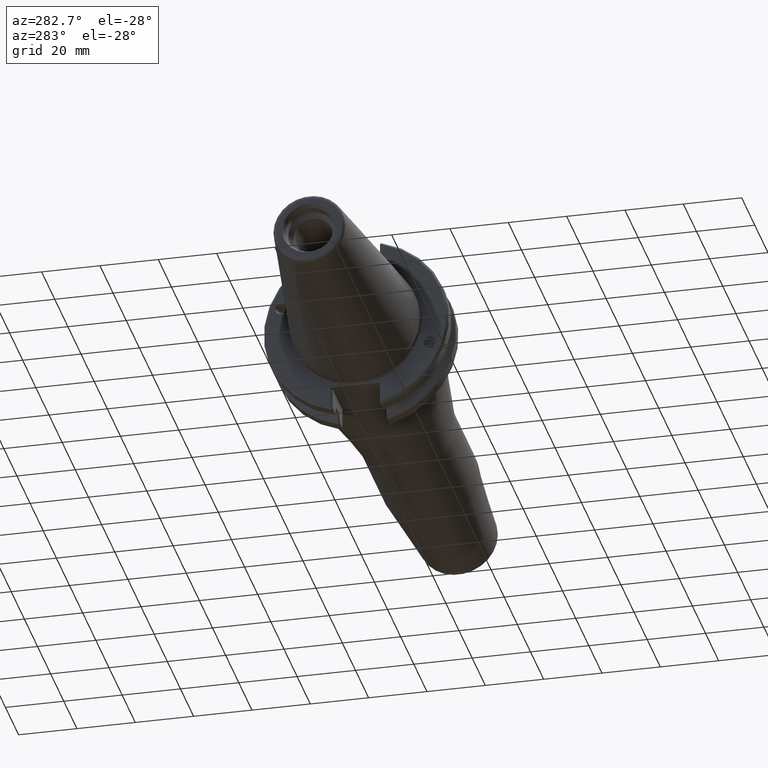
[diagram: clean part render]
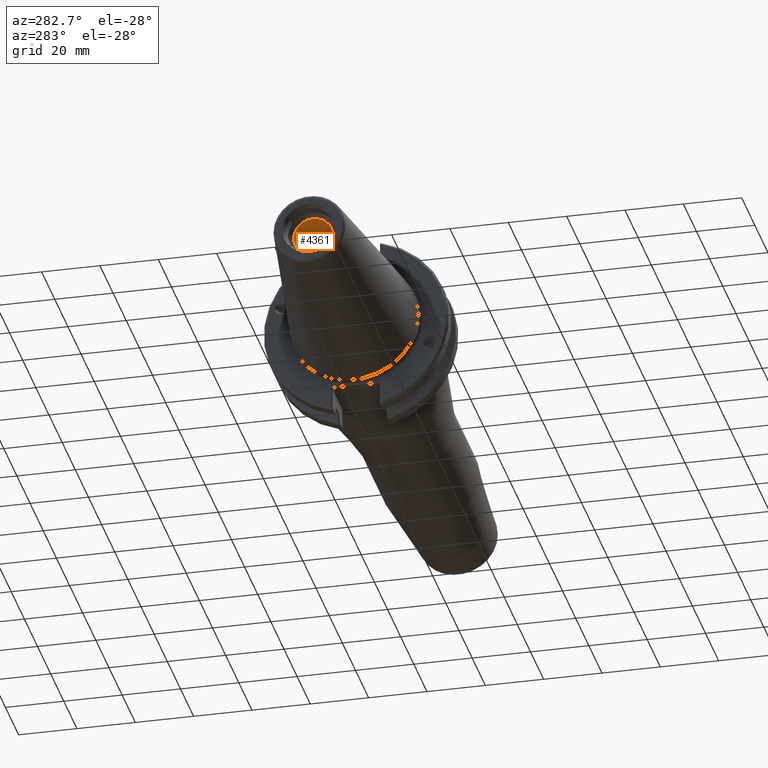
[diagram: same view with one face highlighted and labeled with its STEP entity id]
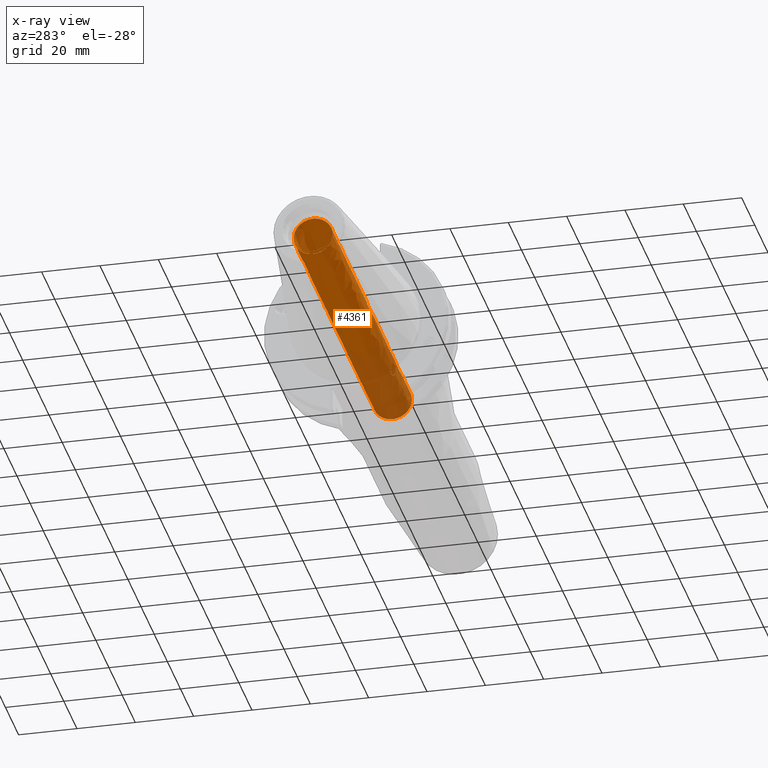
[diagram: x-ray of the same camera — body ghosted, the highlighted face saturated]
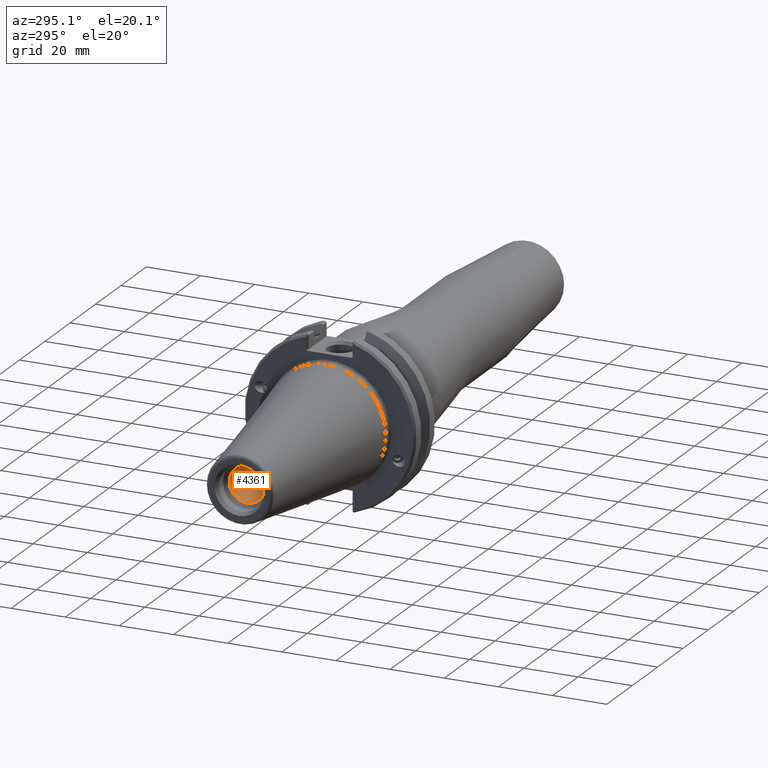
[diagram: same view with one face highlighted and labeled with its STEP entity id]
A machine part, auxiliary view. The second image highlights one B-rep face of the part: STEP entity #4361.
The next image is the same camera in x-ray: the body ghosted, the highlighted face saturated — about 38% of this face is hidden behind the body in this view.
A second angle (auxiliary view) of the same face is appended — the face is thin or edge-on in the first view.
In plain terms, the highlighted face is a freeform B-spline surface patch.
Its self-contained STEP definition (entity closure, byte-faithful):
#166=CARTESIAN_POINT('',(32.471849867467988,-5.530818386450406,-3.768946588385424));
#167=VERTEX_POINT('',#166);
#168=CARTESIAN_POINT('',(32.471849867467988,-5.530818386450406,-3.768946588385424));
#169=CARTESIAN_POINT('',(32.885832995321856,-5.530818386450406,-3.768946588385425));
#170=CARTESIAN_POINT('',(33.349794450932642,-5.563699459490528,-3.723069050991530));
#171=CARTESIAN_POINT('',(33.765260209274246,-5.641817186800560,-3.600667888145451));
#172=CARTESIAN_POINT('',(33.941010817865141,-5.674862601111665,-3.548889664716641));
#173=CARTESIAN_POINT('',(34.108167463368233,-5.715514736191706,-3.483715015754913));
#174=CARTESIAN_POINT('',(34.259895934768181,-5.762325198061008,-3.404485089083394));
#175=CARTESIAN_POINT('',(34.372620644468618,-5.797102426596129,-3.345622237561666));
#176=CARTESIAN_POINT('',(34.478535473700603,-5.835546683519175,-3.278669902818980));
#177=CARTESIAN_POINT('',(34.578285350669425,-5.879268063686205,-3.198299148816361));
#178=CARTESIAN_POINT('',(34.775830408625716,-5.965854060997505,-3.039132584005455));
#179=CARTESIAN_POINT('',(34.933945960698473,-6.069945902072263,-2.830942971501830));
#180=CARTESIAN_POINT('',(35.006348745703903,-6.167839163855303,-2.598590090570792));
#181=CARTESIAN_POINT('',(35.078875483661022,-6.265900018069321,-2.365839423485213));
#182=CARTESIAN_POINT('',(35.066487229991672,-6.355533829520550,-2.112612971455235));
#183=CARTESIAN_POINT('',(34.971940582330014,-6.424761157588208,-1.875461137412833));
#184=CARTESIAN_POINT('',(34.881711825174044,-6.490826913775842,-1.649139889942711));
#185=CARTESIAN_POINT('',(34.716568675383634,-6.537805185083738,-1.441882609289619));
#186=CARTESIAN_POINT('',(34.522093206011220,-6.569251061300786,-1.280566633798685));
#187=CARTESIAN_POINT('',(34.378983955963804,-6.592391233051126,-1.161858560499393));
#188=CARTESIAN_POINT('',(34.225876610854328,-6.607651268922304,-1.067955582561802));
#189=CARTESIAN_POINT('',(34.056426970260304,-6.619700633342899,-0.987154463556555));
#190=CARTESIAN_POINT('',(33.706523199795363,-6.644581878459102,-0.820304796017517));
#191=CARTESIAN_POINT('',(33.298835582379049,-6.653635743489503,-0.724865149534202));
#192=CARTESIAN_POINT('',(32.904065149509435,-6.657463987616041,-0.687810776010023));
#193=CARTESIAN_POINT('',(32.744037989541859,-6.659015833915115,-0.672790131945196));
#194=CARTESIAN_POINT('',(32.587903260191297,-6.659584904240082,-0.666963723988319));
#195=CARTESIAN_POINT('',(32.435421772960375,-6.659471269705223,-0.668096413678969));
#196=CARTESIAN_POINT('',(31.815269075501835,-6.659009110235267,-0.672703140566254));
#197=CARTESIAN_POINT('',(31.118742651155610,-6.649765889768571,-0.799926204905649));
#198=CARTESIAN_POINT('',(30.522612955464282,-6.609948705314421,-1.050470619823424));
#199=CARTESIAN_POINT('',(30.344776097753712,-6.598070479791708,-1.125212797218628));
#200=CARTESIAN_POINT('',(30.175719026926181,-6.583225812787457,-1.210742733386982));
#201=CARTESIAN_POINT('',(30.020602799000113,-6.563829076958289,-1.308074255719795));
#202=CARTESIAN_POINT('',(29.907977713975082,-6.549745708305144,-1.378743657141634));
#203=CARTESIAN_POINT('',(29.794441022645213,-6.532178397928388,-1.461053133721040));
#204=CARTESIAN_POINT('',(29.692080750423234,-6.510005123065121,-1.553944563897271));
#205=CARTESIAN_POINT('',(29.535724220285879,-6.476135182665942,-1.695837325479172));
#206=CARTESIAN_POINT('',(29.406296076888992,-6.431382104000777,-1.862422566107056));
#207=CARTESIAN_POINT('',(29.342949094993031,-6.373127789762174,-2.044052980076864));
#208=CARTESIAN_POINT('',(29.303358390235026,-6.336719909120150,-2.157568665896954));
#209=CARTESIAN_POINT('',(29.290371482579658,-6.293862760369271,-2.279836788467399));
#210=CARTESIAN_POINT('',(29.308405620214263,-6.249361284420980,-2.395911923836136));
#211=CARTESIAN_POINT('',(29.350866472148049,-6.144583855116587,-2.669207450128950));
#212=CARTESIAN_POINT('',(29.556236317116131,-6.033884767650283,-2.902759148005736));
#213=CARTESIAN_POINT('',(29.800402844212549,-5.943225552437839,-3.077820729485385));
#214=CARTESIAN_POINT('',(29.976556944103237,-5.877819402616827,-3.204119021383566));
#215=CARTESIAN_POINT('',(30.162125784155119,-5.824230014749467,-3.298892687795037));
#216=CARTESIAN_POINT('',(30.364721347108727,-5.775129334428289,-3.382719553942636));
#217=CARTESIAN_POINT('',(30.956226746299578,-5.631773196265624,-3.627463531553380));
#218=CARTESIAN_POINT('',(31.669737592894890,-5.543761333019547,-3.749938761854260));
#219=CARTESIAN_POINT('',(32.315082730361652,-5.532226667824761,-3.766879146695384));
#220=CARTESIAN_POINT('',(32.367833461866603,-5.531283820360104,-3.768263859526494));
#221=CARTESIAN_POINT('',(32.420123826501374,-5.530818386450406,-3.768946588385425));
#222=CARTESIAN_POINT('',(32.471849867467988,-5.530818386450406,-3.768946588385425));
#223=B_SPLINE_CURVE_WITH_KNOTS('',3,(#168,#169,#170,#171,#172,#173,#174,#175,#176,#177,#178,#179,#180,#181,#182,#183,#184,#185,#186,#187,#188,#189,#190,#191,#192,#193,#194,#195,#196,#197,#198,#199,#200,#201,#202,#203,#204,#205,#206,#207,#208,#209,#210,#211,#212,#213,#214,#215,#216,#217,#218,#219,#220,#221,#222),.UNSPECIFIED.,.T.,.U.,(4,3,3,3,3,3,3,3,3,3,3,3,3,3,3,3,3,3,4),(0.0,0.124194938356159,0.176731965925244,0.215763672543036,0.293062221476131,0.370493104867091,0.444387764769332,0.498764850965573,0.611050409201411,0.656567341306075,0.841687835192626,0.896912809168187,0.937009950986690,0.998258810794042,1.036538227631610,1.126665999936777,1.191688739926442,1.381531504562295,1.397049316852278),.UNSPECIFIED.);
#224=EDGE_CURVE('',#167,#167,#223,.T.);
#237=CARTESIAN_POINT('',(32.471849867467988,6.659484859425110,0.667960939791934));
#238=VERTEX_POINT('',#237);
#239=CARTESIAN_POINT('',(32.471849867467995,6.659484859425110,0.667960939791936));
#240=CARTESIAN_POINT('',(31.889745985446215,6.659484859425110,0.667960939791934));
#241=CARTESIAN_POINT('',(31.236476675917565,6.651380246520129,0.776519641240546));
#242=CARTESIAN_POINT('',(30.660715951205258,6.618486090364834,0.995264930381466));
#243=CARTESIAN_POINT('',(30.468175167275287,6.607485919041894,1.068415785666404));
#244=CARTESIAN_POINT('',(30.284170979698853,6.593489324946357,1.153585265973652));
#245=CARTESIAN_POINT('',(30.114481584108464,6.574836053648059,1.251575518156865));
#246=CARTESIAN_POINT('',(30.007098703054375,6.563031886356840,1.313585731335125));
#247=CARTESIAN_POINT('',(29.903883051503289,6.549315616625512,1.381258665428042));
#248=CARTESIAN_POINT('',(29.803637441006952,6.531729007651166,1.459940608589377));
#249=CARTESIAN_POINT('',(29.612559277171538,6.498207171290739,1.609916264898232));
#250=CARTESIAN_POINT('',(29.444009683182625,6.451422703363041,1.794634778079475));
#251=CARTESIAN_POINT('',(29.359383384229538,6.386850352282447,2.000763101306494));
#252=CARTESIAN_POINT('',(29.313256982107816,6.351654553000953,2.113115384739293));
#253=CARTESIAN_POINT('',(29.292244727964089,6.310304794484268,2.234025184522895));
#254=CARTESIAN_POINT('',(29.303007405990254,6.265984421071275,2.352094735526629));
#255=CARTESIAN_POINT('',(29.322361457356077,6.186285039420879,2.564414025327082));
#256=CARTESIAN_POINT('',(29.439729413324724,6.102079298577711,2.755078342621916));
#257=CARTESIAN_POINT('',(29.602301537545589,6.025539235374212,2.913380739444463));
#258=CARTESIAN_POINT('',(29.710599363676327,5.974551881320900,3.018834276016800));
#259=CARTESIAN_POINT('',(29.838630059343352,5.926972458970581,3.110218687793240));
#260=CARTESIAN_POINT('',(29.967734731757847,5.885595229105317,3.186640740518568));
#261=CARTESIAN_POINT('',(30.091123524171724,5.846049902580535,3.259679342632780));
#262=CARTESIAN_POINT('',(30.219277891908384,5.810573831623023,3.322122261287633));
#263=CARTESIAN_POINT('',(30.355958707150251,5.777259083634691,3.379080923943737));
#264=CARTESIAN_POINT('',(30.689920415270091,5.695858851099664,3.518251971754604));
#265=CARTESIAN_POINT('',(31.063103903139194,5.631348380870396,3.617831525120025));
#266=CARTESIAN_POINT('',(31.441332076458085,5.589168105985743,3.681862340315258));
#267=CARTESIAN_POINT('',(31.737741806067724,5.556112282132878,3.732041988362528));
#268=CARTESIAN_POINT('',(32.037299990804712,5.536935535383539,3.759964033012577));
#269=CARTESIAN_POINT('',(32.323169312329945,5.532085804776704,3.767086016882026));
#270=CARTESIAN_POINT('',(32.469549227922101,5.529602491236498,3.770732841914164));
#271=CARTESIAN_POINT('',(32.612453113582092,5.530595344869046,3.769285331673254));
#272=CARTESIAN_POINT('',(32.762310769074972,5.535818587461465,3.761598460324567));
#273=CARTESIAN_POINT('',(33.188637994147804,5.550678092055904,3.739730224625836));
#274=CARTESIAN_POINT('',(33.640986960948062,5.603741374614472,3.664061497778692));
#275=CARTESIAN_POINT('',(34.026557795525953,5.698097235333419,3.510925562680823));
#276=CARTESIAN_POINT('',(34.167231344310494,5.732522488971924,3.455054699262848));
#277=CARTESIAN_POINT('',(34.296963024270127,5.771221322625713,3.390569936270009));
#278=CARTESIAN_POINT('',(34.418880124897434,5.815627578610878,3.312610190906951));
#279=CARTESIAN_POINT('',(34.621300803326100,5.889355910540880,3.183172528222074));
#280=CARTESIAN_POINT('',(34.806296123632109,5.983424780235072,3.007633064264858));
#281=CARTESIAN_POINT('',(34.920403435550021,6.079111499791709,2.799877458586395));
#282=CARTESIAN_POINT('',(35.033577535363769,6.174015657710557,2.593820955644369));
#283=CARTESIAN_POINT('',(35.076780985435775,6.268163566884591,2.359046480971180));
#284=CARTESIAN_POINT('',(35.040993059131253,6.346037802022776,2.126667492885980));
#285=CARTESIAN_POINT('',(35.005159350613020,6.424011658883805,1.893991230675331));
#286=CARTESIAN_POINT('',(34.888836344736596,6.485530586516804,1.664641886150749));
#287=CARTESIAN_POINT('',(34.721666243882794,6.528588884018360,1.473919127181647));
#288=CARTESIAN_POINT('',(34.617046887772602,6.555535875955354,1.354559910808640));
#289=CARTESIAN_POINT('',(34.493502336581045,6.575704906033196,1.250069899021885));
#290=CARTESIAN_POINT('',(34.366486344889431,6.590924113214697,1.163885623179985));
#291=CARTESIAN_POINT('',(34.243093908042184,6.605709141745342,1.080160041287374));
#292=CARTESIAN_POINT('',(34.108325426863424,6.616928348184556,1.007512655685867));
#293=CARTESIAN_POINT('',(33.964842865641202,6.625765154545009,0.945593214240220));
#294=CARTESIAN_POINT('',(33.562619650142693,6.650537284612677,0.772015069077567));
#295=CARTESIAN_POINT('',(33.095069716843312,6.657358660128618,0.689048817168409));
#296=CARTESIAN_POINT('',(32.662888182525819,6.659103424300517,0.671752926654683));
#297=CARTESIAN_POINT('',(32.598283841627236,6.659364239098001,0.669167463097898));
#298=CARTESIAN_POINT('',(32.534489700298053,6.659484859425111,0.667960939791933));
#299=CARTESIAN_POINT('',(32.471849867467988,6.659484859425111,0.667960939791933));
#300=B_SPLINE_CURVE_WITH_KNOTS('',3,(#239,#240,#241,#242,#243,#244,#245,#246,#247,#248,#249,#250,#251,#252,#253,#254,#255,#256,#257,#258,#259,#260,#261,#262,#263,#264,#265,#266,#267,#268,#269,#270,#271,#272,#273,#274,#275,#276,#277,#278,#279,#280,#281,#282,#283,#284,#285,#286,#287,#288,#289,#290,#291,#292,#293,#294,#295,#296,#297,#298,#299),.UNSPECIFIED.,.T.,.U.,(4,3,3,3,3,3,3,3,3,3,3,3,3,3,3,3,3,3,3,3,4),(0.0,0.174631164606535,0.233029766471479,0.269985582690696,0.340427066075795,0.378821894029608,0.447865627438117,0.493859282696834,0.537816650582431,0.645220733866161,0.729391130285205,0.772490737677285,0.895103999981169,0.939838822196703,1.014112677264296,1.087779093076620,1.161539747699071,1.207701065742515,1.252545478210598,1.378257367003259,1.397049316852278),.UNSPECIFIED.);
#301=EDGE_CURVE('',#238,#238,#300,.T.);
#747=CARTESIAN_POINT('',(58.750199999999985,-6.692900000000001,0.0));
#748=VERTEX_POINT('',#747);
#749=CARTESIAN_POINT('',(58.750199999999985,0.0,0.0));
#750=DIRECTION('',(-1.0,0.0,0.0));
#751=DIRECTION('',(0.0,-1.0,0.0));
#752=AXIS2_PLACEMENT_3D('',#749,#750,#751);
#753=CIRCLE('',#752,6.692900000000001);
#754=EDGE_CURVE('',#748,#748,#753,.T.);
#4315=CARTESIAN_POINT('',(-61.950599999999994,-8.196168E-016,-6.692900000000001));
#4316=CARTESIAN_POINT('',(58.750199999999992,-8.196168E-016,-6.692900000000001));
#4317=CARTESIAN_POINT('',(-61.950599999999994,-6.692900000000000,-6.692899999999998));
#4318=CARTESIAN_POINT('',(58.750199999999992,-6.692900000000000,-6.692899999999998));
#4319=CARTESIAN_POINT('',(-61.950599999999994,-6.692900000000001,8.196168E-016));
#4320=CARTESIAN_POINT('',(58.750199999999992,-6.692900000000001,8.196168E-016));
#4321=CARTESIAN_POINT('',(-61.950599999999994,-6.692899999999998,6.692900000000000));
#4322=CARTESIAN_POINT('',(58.750199999999992,-6.692899999999998,6.692900000000000));
#4323=CARTESIAN_POINT('',(-61.950599999999994,8.196168E-016,6.692900000000001));
#4324=CARTESIAN_POINT('',(58.750199999999992,8.196168E-016,6.692900000000001));
#4325=CARTESIAN_POINT('',(-61.950599999999994,6.692900000000000,6.692899999999998));
#4326=CARTESIAN_POINT('',(58.750199999999992,6.692900000000000,6.692899999999998));
#4327=CARTESIAN_POINT('',(-61.950599999999994,6.692900000000001,-8.196168E-016));
#4328=CARTESIAN_POINT('',(58.750199999999992,6.692900000000001,-8.196168E-016));
#4329=CARTESIAN_POINT('',(-61.950599999999994,6.692899999999998,-6.692900000000000));
#4330=CARTESIAN_POINT('',(58.750199999999992,6.692899999999998,-6.692900000000000));
#4331=CARTESIAN_POINT('',(-61.950599999999994,-8.196168E-016,-6.692900000000001));
#4332=CARTESIAN_POINT('',(58.750199999999992,-8.196168E-016,-6.692900000000001));
#4340=(BOUNDED_SURFACE()B_SPLINE_SURFACE(1,2,((#4315,#4317,#4319,#4321,#4323,#4325,#4327,#4329,#4331),(#4316,#4318,#4320,#4322,#4324,#4326,#4328,#4330,#4332)),.UNSPECIFIED.,.F.,.T.,.U.)B_SPLINE_SURFACE_WITH_KNOTS((2,2),(3,2,2,2,3),(-3.800759013282731,14.233396584440227),(0.0,10.513182735605564,21.026365471211129,31.539548206816693,42.052730942422258),.UNSPECIFIED.)GEOMETRIC_REPRESENTATION_ITEM()RATIONAL_B_SPLINE_SURFACE(((1.0,0.707106781186548,1.0,0.707106781186548,1.0,0.707106781186548,1.0,0.707106781186548,1.0),(1.0,0.707106781186548,1.0,0.707106781186548,1.0,0.707106781186548,1.0,0.707106781186548,1.0)))REPRESENTATION_ITEM('')SURFACE());
#4341=ORIENTED_EDGE('',*,*,#224,.T.);
#4342=EDGE_LOOP('',(#4341));
#4343=FACE_OUTER_BOUND('',#4342,.T.);
#4344=ORIENTED_EDGE('',*,*,#301,.T.);
#4345=EDGE_LOOP('',(#4344));
#4346=FACE_BOUND('',#4345,.T.);
#4347=ORIENTED_EDGE('',*,*,#754,.F.);
#4348=EDGE_LOOP('',(#4347));
#4349=FACE_BOUND('',#4348,.T.);
#4350=CARTESIAN_POINT('',(-61.950599999999994,8.196168E-016,-6.692900000000001));
#4351=VERTEX_POINT('',#4350);
#4352=CARTESIAN_POINT('',(-61.950599999999994,0.0,0.0));
#4353=DIRECTION('',(1.0,0.0,0.0));
#4354=DIRECTION('',(0.0,0.0,1.0));
#4355=AXIS2_PLACEMENT_3D('',#4352,#4353,#4354);
#4356=CIRCLE('',#4355,6.692900000000001);
#4357=EDGE_CURVE('',#4351,#4351,#4356,.T.);
#4358=ORIENTED_EDGE('',*,*,#4357,.F.);
#4359=EDGE_LOOP('',(#4358));
#4360=FACE_BOUND('',#4359,.T.);
#4361=ADVANCED_FACE('',(#4343,#4346,#4349,#4360),#4340,.F.);